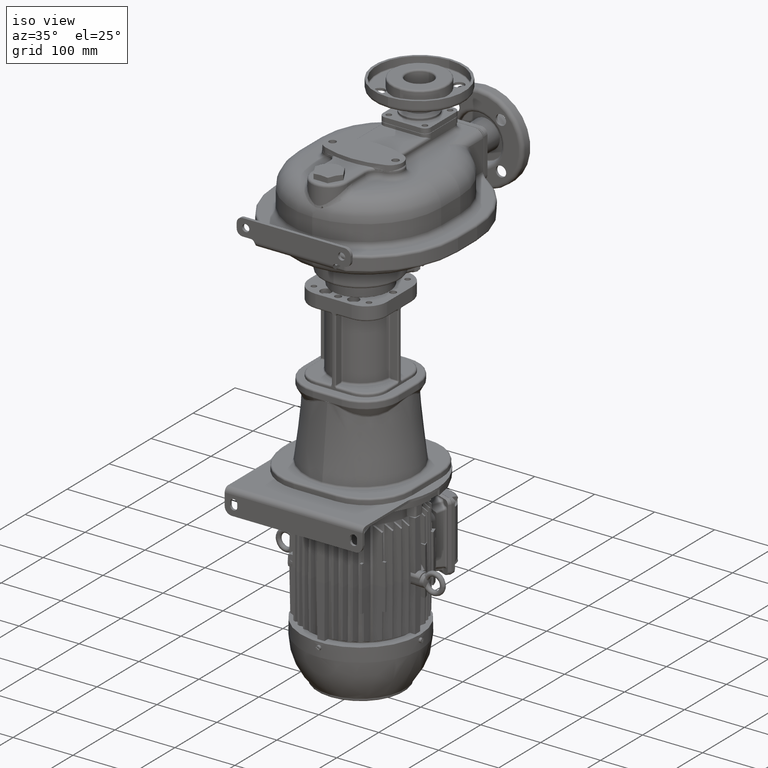
[diagram: clean part render]
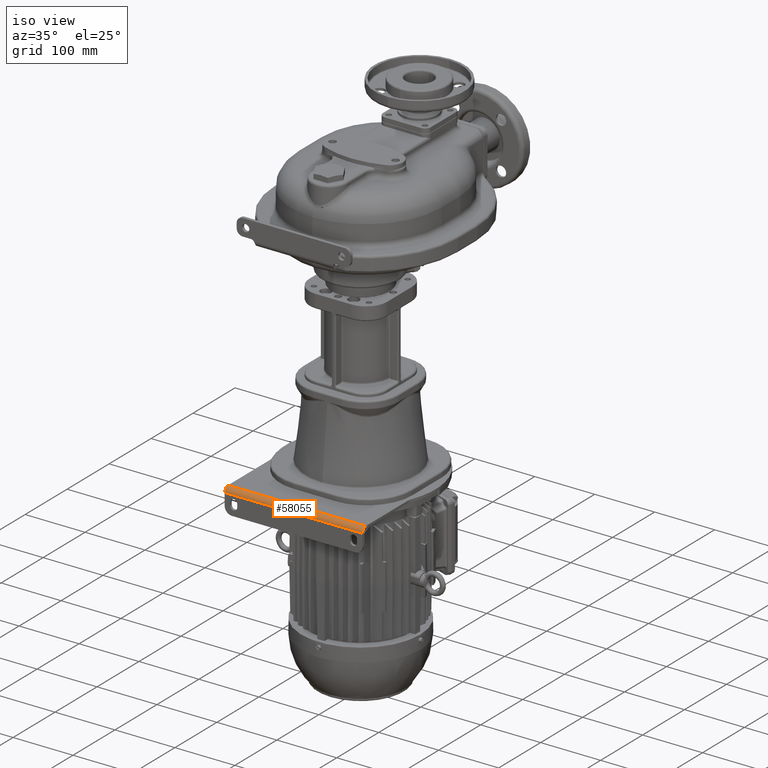
[diagram: same view with one face highlighted and labeled with its STEP entity id]
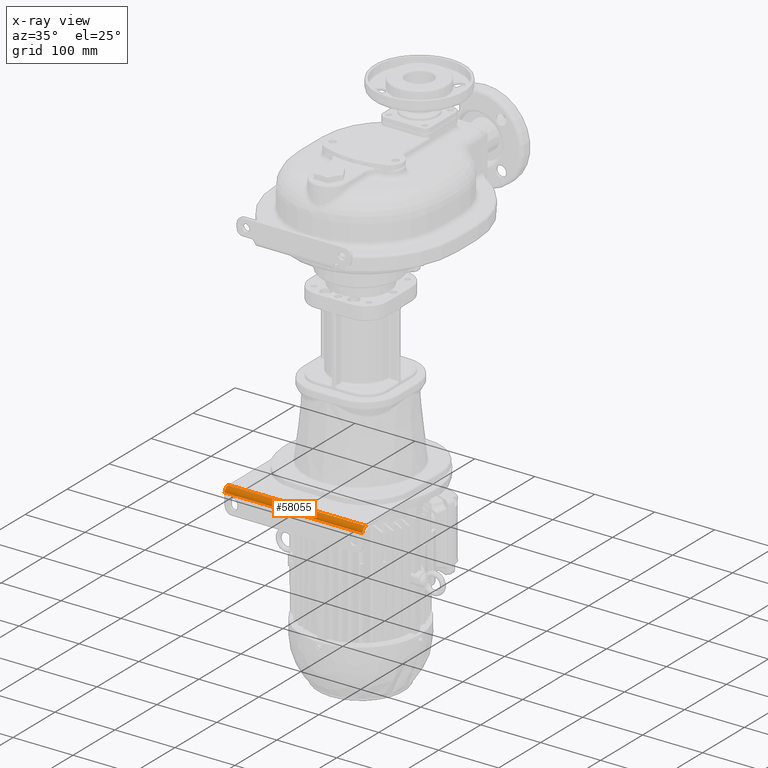
[diagram: x-ray of the same camera — body ghosted, the highlighted face saturated]
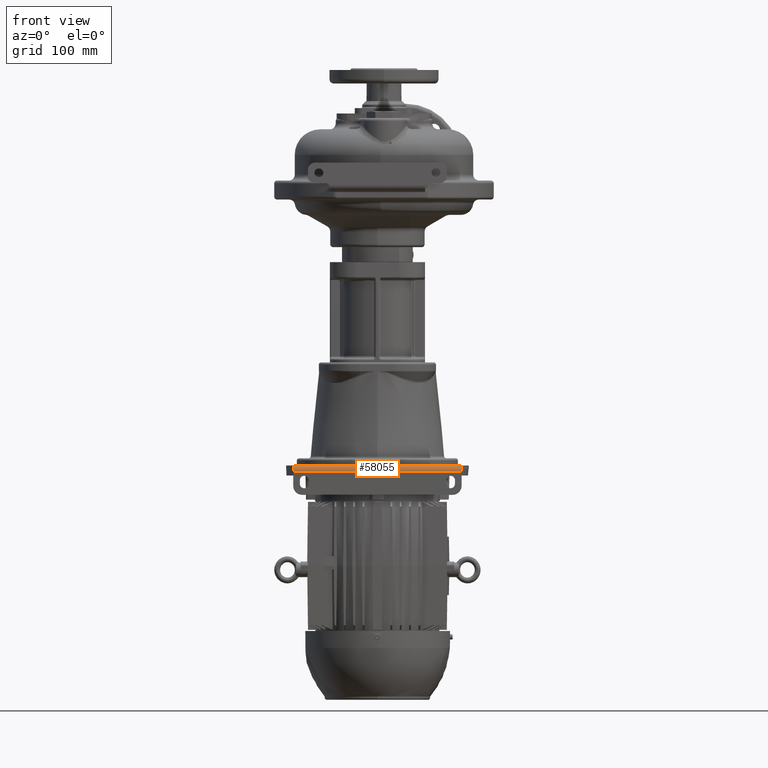
[diagram: same view with one face highlighted and labeled with its STEP entity id]
A machine part, iso view. The second image highlights one B-rep face of the part: STEP entity #58055.
The next image is the same camera in x-ray: the body ghosted, the highlighted face saturated — about 0% of this face is hidden behind the body in this view.
A second angle (front view) of the same face is appended — the face is thin or edge-on in the first view.
In plain terms, the highlighted cylindrical surface (edge-blend (fillet) strip) has radius 8 mm, axis along (-1, 0, 0).
Its self-contained STEP definition (entity closure, byte-faithful):
#4428=DIRECTION('',(1.E0,0.E0,0.E0));
#4429=VECTOR('',#4428,2.3E2);
#4430=CARTESIAN_POINT('',(-1.15E2,-1.6E2,-3.885E2));
#4431=LINE('',#4430,#4429);
#4432=CARTESIAN_POINT('',(-1.15E2,-1.52E2,-3.885E2));
#4433=DIRECTION('',(-1.E0,0.E0,0.E0));
#4434=DIRECTION('',(0.E0,-1.E0,0.E0));
#4435=AXIS2_PLACEMENT_3D('',#4432,#4433,#4434);
#4437=DIRECTION('',(1.E0,0.E0,0.E0));
#4438=VECTOR('',#4437,2.3E2);
#4439=CARTESIAN_POINT('',(-1.15E2,-1.52E2,-3.805E2));
#4440=LINE('',#4439,#4438);
#4441=CARTESIAN_POINT('',(1.15E2,-1.52E2,-3.885E2));
#4442=DIRECTION('',(-1.E0,0.E0,0.E0));
#4443=DIRECTION('',(0.E0,-1.E0,0.E0));
#4444=AXIS2_PLACEMENT_3D('',#4441,#4442,#4443);
#50460=CARTESIAN_POINT('',(1.15E2,-1.6E2,-3.885E2));
#50461=VERTEX_POINT('',#50460);
#50462=CARTESIAN_POINT('',(-1.15E2,-1.6E2,-3.885E2));
#50463=VERTEX_POINT('',#50462);
#50501=CARTESIAN_POINT('',(1.15E2,-1.52E2,-3.805E2));
#50503=VERTEX_POINT('',#50501);
#50508=CARTESIAN_POINT('',(-1.15E2,-1.52E2,-3.805E2));
#50510=VERTEX_POINT('',#50508);
#58042=CARTESIAN_POINT('',(-1.15E2,-1.52E2,-3.885E2));
#58043=DIRECTION('',(-1.E0,0.E0,0.E0));
#58044=DIRECTION('',(0.E0,-1.E0,0.E0));
#58045=AXIS2_PLACEMENT_3D('',#58042,#58043,#58044);
#58046=CYLINDRICAL_SURFACE('',#58045,8.E0);
#58048=ORIENTED_EDGE('',*,*,#58047,.F.);
#58050=ORIENTED_EDGE('',*,*,#58049,.T.);
#58051=ORIENTED_EDGE('',*,*,#57975,.T.);
#58052=ORIENTED_EDGE('',*,*,#58032,.F.);
#58053=EDGE_LOOP('',(#58048,#58050,#58051,#58052));
#58054=FACE_OUTER_BOUND('',#58053,.F.);
#58055=ADVANCED_FACE('',(#58054),#58046,.T.);
#4436=CIRCLE('',#4435,8.E0);
#4445=CIRCLE('',#4444,8.E0);
#57975=EDGE_CURVE('',#50510,#50503,#4440,.T.);
#58032=EDGE_CURVE('',#50461,#50503,#4445,.T.);
#58047=EDGE_CURVE('',#50463,#50461,#4431,.T.);
#58049=EDGE_CURVE('',#50463,#50510,#4436,.T.);